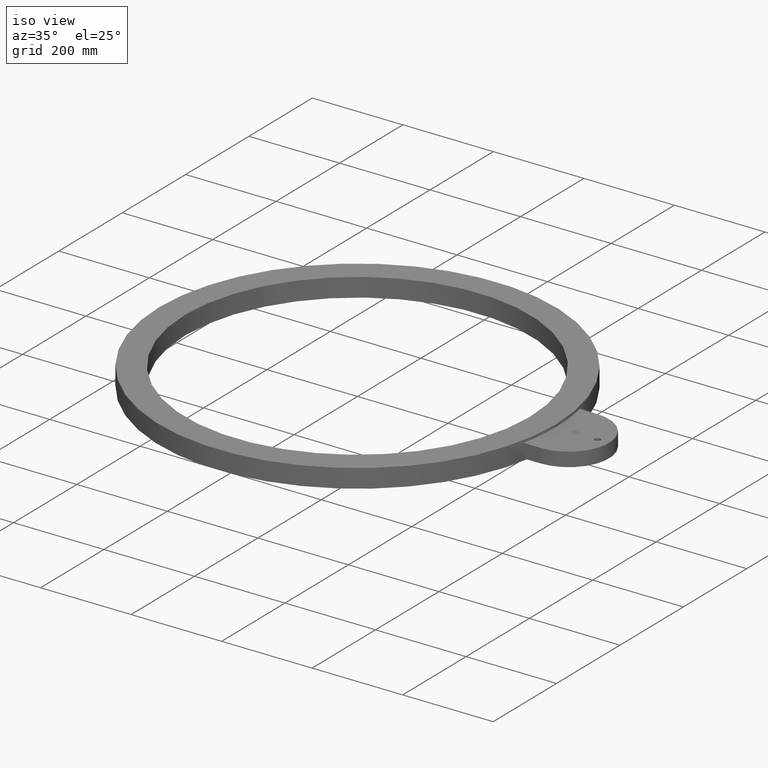
[diagram: clean part render]
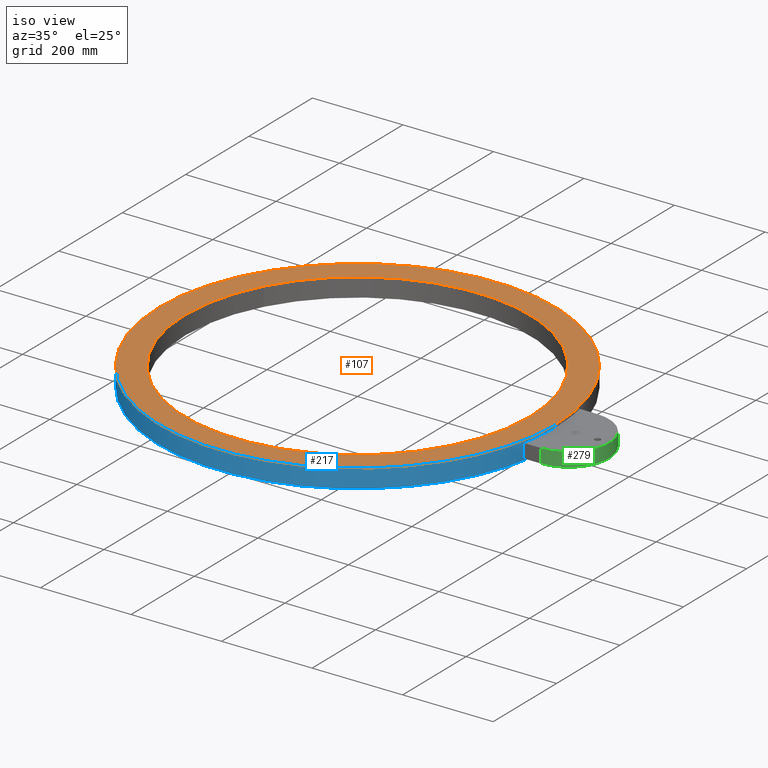
[diagram: same view with three faces highlighted in distinct colors, each labeled with its STEP entity id]
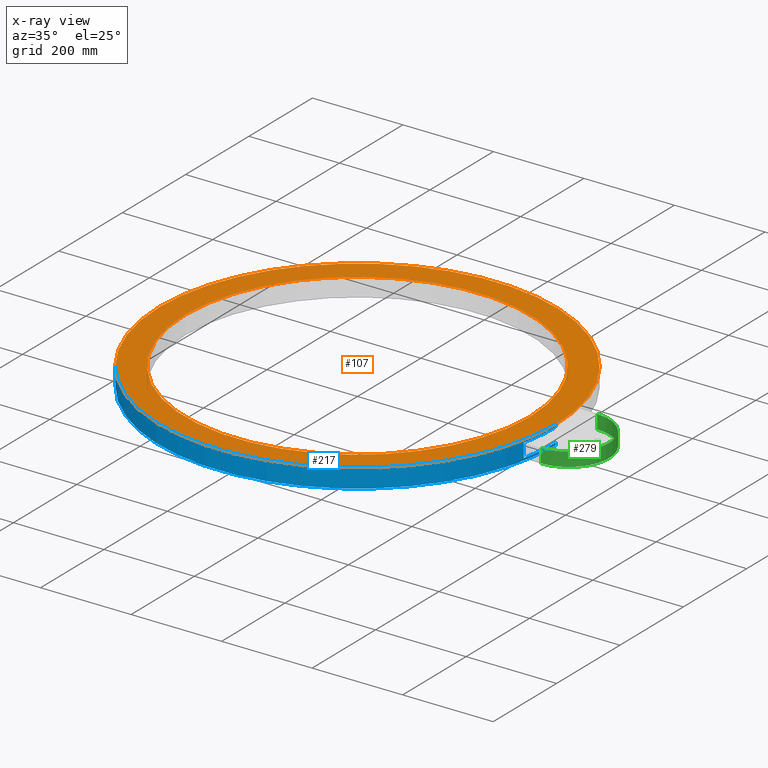
[diagram: x-ray of the same camera — body ghosted, the three highlighted faces saturated]
A machine part, iso view with three faces highlighted in distinct colors.
The next image is the same camera in x-ray (body ghosted, the three faces saturated) — at least one of them is partly hidden behind the body in this view.
Their STEP definitions:

[orange] entity #107 — the highlighted planar face has unit normal (0, 0, 1).
#65=AXIS2_PLACEMENT_3D('Circle Axis2P3D',#63,#64,$) ;
#78=AXIS2_PLACEMENT_3D('Plane Axis2P3D',#75,#76,#77) ;
#82=AXIS2_PLACEMENT_3D('Circle Axis2P3D',#80,#81,$) ;
#91=AXIS2_PLACEMENT_3D('Circle Axis2P3D',#89,#90,$) ;
#100=AXIS2_PLACEMENT_3D('Circle Axis2P3D',#98,#99,$) ;
#46=CARTESIAN_POINT('Vertex',(-13.1637384284,7.19138307909,0.812500000003)) ;
#60=CARTESIAN_POINT('Vertex',(13.1637384284,-7.19138307909,0.812500000003)) ;
#63=CARTESIAN_POINT('Axis2P3D Location',(8.52336574023E-017,-6.99353086378E-017,0.812500000003)) ;
#75=CARTESIAN_POINT('Axis2P3D Location',(0.,0.,0.812500000003)) ;
#80=CARTESIAN_POINT('Axis2P3D Location',(0.,0.,0.812500000003)) ;
#84=CARTESIAN_POINT('Vertex',(17.2500000001,0.,0.812500000003)) ;
#86=CARTESIAN_POINT('Vertex',(-17.2500000001,2.11251572854E-015,0.812500000003)) ;
#89=CARTESIAN_POINT('Axis2P3D Location',(0.,0.,0.812500000003)) ;
#98=CARTESIAN_POINT('Axis2P3D Location',(-5.59482469102E-016,2.23792987641E-015,0.812500000003)) ;
#64=DIRECTION('Axis2P3D Direction',(0.,-0.,-0.0393700787402)) ;
#76=DIRECTION('Axis2P3D Direction',(0.,0.,0.0393700787402)) ;
#77=DIRECTION('Axis2P3D XDirection',(0.0393700787402,0.,0.)) ;
#81=DIRECTION('Axis2P3D Direction',(0.,0.,0.0393700787402)) ;
#90=DIRECTION('Axis2P3D Direction',(0.,0.,0.0393700787402)) ;
#99=DIRECTION('Axis2P3D Direction',(0.,0.,0.0393700787402)) ;
#95=ORIENTED_EDGE('',*,*,#88,.T.) ;
#96=ORIENTED_EDGE('',*,*,#93,.T.) ;
#104=ORIENTED_EDGE('',*,*,#102,.F.) ;
#105=ORIENTED_EDGE('',*,*,#67,.F.) ;
#106=FACE_BOUND('',#103,.T.) ;
#107=ADVANCED_FACE('PartBody',(#97,#106),#79,.T.) ;
#66=CIRCLE('generated circle',#65,15.0000000001) ;
#83=CIRCLE('generated circle',#82,17.2500000001) ;
#92=CIRCLE('generated circle',#91,17.2500000001) ;
#101=CIRCLE('generated circle',#100,15.0000000001) ;
#67=EDGE_CURVE('',#61,#47,#66,.F.) ;
#88=EDGE_CURVE('',#85,#87,#83,.T.) ;
#93=EDGE_CURVE('',#87,#85,#92,.T.) ;
#102=EDGE_CURVE('',#47,#61,#101,.T.) ;
#94=EDGE_LOOP('',(#95,#96)) ;
#103=EDGE_LOOP('',(#104,#105)) ;
#97=FACE_OUTER_BOUND('',#94,.T.) ;
#79=PLANE('',#78) ;
#47=VERTEX_POINT('',#46) ;
#61=VERTEX_POINT('',#60) ;
#85=VERTEX_POINT('',#84) ;
#87=VERTEX_POINT('',#86) ;

[blue] entity #217 — the highlighted cylindrical surface (partial cylindrical patch) has radius 438.15 mm, axis along (0, 0, 1).
#91=AXIS2_PLACEMENT_3D('Circle Axis2P3D',#89,#90,$) ;
#123=AXIS2_PLACEMENT_3D('Cylinder Axis2P3D',#120,#121,#122) ;
#185=AXIS2_PLACEMENT_3D('Circle Axis2P3D',#183,#184,$) ;
#190=AXIS2_PLACEMENT_3D('Circle Axis2P3D',#188,#189,$) ;
#204=AXIS2_PLACEMENT_3D('Circle Axis2P3D',#202,#203,$) ;
#84=CARTESIAN_POINT('Vertex',(17.2500000001,0.,0.812500000003)) ;
#86=CARTESIAN_POINT('Vertex',(-17.2500000001,2.11251572854E-015,0.812500000003)) ;
#89=CARTESIAN_POINT('Axis2P3D Location',(0.,0.,0.812500000003)) ;
#120=CARTESIAN_POINT('Axis2P3D Location',(0.,0.,0.)) ;
#125=CARTESIAN_POINT('Line Origine',(17.2500000001,0.,0.)) ;
#129=CARTESIAN_POINT('Vertex',(17.2500000001,0.,-0.812500000003)) ;
#131=CARTESIAN_POINT('Vertex',(17.2500000001,0.,-0.609375000002)) ;
#138=CARTESIAN_POINT('Vertex',(-17.2500000001,2.11251572854E-015,-0.812500000003)) ;
#141=CARTESIAN_POINT('Line Origine',(-17.2500000001,2.11251572854E-015,0.)) ;
#146=CARTESIAN_POINT('Line Origine',(17.2500000001,0.,0.)) ;
#150=CARTESIAN_POINT('Vertex',(17.2500000001,0.,0.609375000002)) ;
#183=CARTESIAN_POINT('Axis2P3D Location',(0.,0.,-0.812500000003)) ;
#188=CARTESIAN_POINT('Axis2P3D Location',(0.,0.,-0.609375000002)) ;
#192=CARTESIAN_POINT('Vertex',(16.8911959317,-3.50000000001,-0.609375000002)) ;
#195=CARTESIAN_POINT('Line Origine',(16.8911959317,-3.50000000001,0.)) ;
#199=CARTESIAN_POINT('Vertex',(16.8911959317,-3.50000000001,0.609375000002)) ;
#202=CARTESIAN_POINT('Axis2P3D Location',(0.,0.,0.609375000002)) ;
#90=DIRECTION('Axis2P3D Direction',(0.,0.,0.0393700787402)) ;
#121=DIRECTION('Axis2P3D Direction',(0.,0.,0.0393700787402)) ;
#122=DIRECTION('Axis2P3D XDirection',(-0.0393700787402,4.82144409113E-018,0.)) ;
#126=DIRECTION('Vector Direction',(0.,0.,0.0393700787402)) ;
#142=DIRECTION('Vector Direction',(0.,0.,0.0393700787402)) ;
#147=DIRECTION('Vector Direction',(0.,0.,0.0393700787402)) ;
#184=DIRECTION('Axis2P3D Direction',(0.,0.,0.0393700787402)) ;
#189=DIRECTION('Axis2P3D Direction',(0.,0.,0.0393700787402)) ;
#196=DIRECTION('Vector Direction',(0.,0.,0.0393700787402)) ;
#203=DIRECTION('Axis2P3D Direction',(0.,0.,0.0393700787402)) ;
#127=VECTOR('Line Direction',#126,0.0393700787402) ;
#143=VECTOR('Line Direction',#142,0.0393700787402) ;
#148=VECTOR('Line Direction',#147,0.0393700787402) ;
#197=VECTOR('Line Direction',#196,0.0393700787402) ;
#208=ORIENTED_EDGE('',*,*,#152,.T.) ;
#209=ORIENTED_EDGE('',*,*,#93,.F.) ;
#210=ORIENTED_EDGE('',*,*,#145,.F.) ;
#211=ORIENTED_EDGE('',*,*,#187,.T.) ;
#212=ORIENTED_EDGE('',*,*,#133,.T.) ;
#213=ORIENTED_EDGE('',*,*,#194,.F.) ;
#214=ORIENTED_EDGE('',*,*,#201,.T.) ;
#215=ORIENTED_EDGE('',*,*,#206,.T.) ;
#217=ADVANCED_FACE('PartBody',(#216),#124,.T.) ;
#92=CIRCLE('generated circle',#91,17.2500000001) ;
#186=CIRCLE('generated circle',#185,17.2500000001) ;
#191=CIRCLE('generated circle',#190,17.2500000001) ;
#205=CIRCLE('generated circle',#204,17.2500000001) ;
#124=CYLINDRICAL_SURFACE('generated cylinder',#123,17.2500000001) ;
#93=EDGE_CURVE('',#87,#85,#92,.T.) ;
#133=EDGE_CURVE('',#130,#132,#128,.T.) ;
#145=EDGE_CURVE('',#139,#87,#144,.T.) ;
#152=EDGE_CURVE('',#151,#85,#149,.T.) ;
#187=EDGE_CURVE('',#139,#130,#186,.T.) ;
#194=EDGE_CURVE('',#193,#132,#191,.T.) ;
#201=EDGE_CURVE('',#193,#200,#198,.T.) ;
#206=EDGE_CURVE('',#200,#151,#205,.T.) ;
#207=EDGE_LOOP('',(#208,#209,#210,#211,#212,#213,#214,#215)) ;
#216=FACE_OUTER_BOUND('',#207,.T.) ;
#128=LINE('Line',#125,#127) ;
#144=LINE('Line',#141,#143) ;
#149=LINE('Line',#146,#148) ;
#198=LINE('Line',#195,#197) ;
#85=VERTEX_POINT('',#84) ;
#87=VERTEX_POINT('',#86) ;
#130=VERTEX_POINT('',#129) ;
#132=VERTEX_POINT('',#131) ;
#139=VERTEX_POINT('',#138) ;
#151=VERTEX_POINT('',#150) ;
#193=VERTEX_POINT('',#192) ;
#200=VERTEX_POINT('',#199) ;

[green] entity #279 — the highlighted cylindrical surface (partial cylindrical patch) has radius 88.9 mm, axis along (0, 0, 1).
#252=AXIS2_PLACEMENT_3D('Cylinder Axis2P3D',#249,#250,#251) ;
#256=AXIS2_PLACEMENT_3D('Circle Axis2P3D',#254,#255,$) ;
#270=AXIS2_PLACEMENT_3D('Circle Axis2P3D',#268,#269,$) ;
#227=CARTESIAN_POINT('Vertex',(18.3911959317,-3.50000000001,-0.609375000002)) ;
#230=CARTESIAN_POINT('Line Origine',(18.3911959317,-3.50000000001,-6.99353086378E-017)) ;
#234=CARTESIAN_POINT('Vertex',(18.3911959317,-3.50000000001,0.609375000002)) ;
#249=CARTESIAN_POINT('Axis2P3D Location',(18.3911959317,0.,0.)) ;
#254=CARTESIAN_POINT('Axis2P3D Location',(18.3911959317,0.,-0.609375000002)) ;
#258=CARTESIAN_POINT('Vertex',(18.3911959317,3.50000000001,-0.609375000002)) ;
#261=CARTESIAN_POINT('Line Origine',(18.3911959317,3.50000000001,-6.99353086378E-017)) ;
#265=CARTESIAN_POINT('Vertex',(18.3911959317,3.50000000001,0.609375000002)) ;
#268=CARTESIAN_POINT('Axis2P3D Location',(18.3911959317,0.,0.609375000002)) ;
#231=DIRECTION('Vector Direction',(0.,0.,0.0393700787402)) ;
#250=DIRECTION('Axis2P3D Direction',(0.,0.,0.0393700787402)) ;
#251=DIRECTION('Axis2P3D XDirection',(-7.2321661367E-018,-0.0393700787402,-0.)) ;
#255=DIRECTION('Axis2P3D Direction',(0.,0.,0.0393700787402)) ;
#262=DIRECTION('Vector Direction',(0.,0.,0.0393700787402)) ;
#269=DIRECTION('Axis2P3D Direction',(0.,0.,0.0393700787402)) ;
#232=VECTOR('Line Direction',#231,0.0393700787402) ;
#263=VECTOR('Line Direction',#262,0.0393700787402) ;
#274=ORIENTED_EDGE('',*,*,#236,.F.) ;
#275=ORIENTED_EDGE('',*,*,#260,.T.) ;
#276=ORIENTED_EDGE('',*,*,#267,.T.) ;
#277=ORIENTED_EDGE('',*,*,#272,.F.) ;
#279=ADVANCED_FACE('PartBody',(#278),#253,.T.) ;
#257=CIRCLE('generated circle',#256,3.50000000001) ;
#271=CIRCLE('generated circle',#270,3.50000000001) ;
#253=CYLINDRICAL_SURFACE('generated cylinder',#252,3.50000000001) ;
#236=EDGE_CURVE('',#228,#235,#233,.T.) ;
#260=EDGE_CURVE('',#228,#259,#257,.T.) ;
#267=EDGE_CURVE('',#259,#266,#264,.T.) ;
#272=EDGE_CURVE('',#235,#266,#271,.T.) ;
#273=EDGE_LOOP('',(#274,#275,#276,#277)) ;
#278=FACE_OUTER_BOUND('',#273,.T.) ;
#233=LINE('Line',#230,#232) ;
#264=LINE('Line',#261,#263) ;
#228=VERTEX_POINT('',#227) ;
#235=VERTEX_POINT('',#234) ;
#259=VERTEX_POINT('',#258) ;
#266=VERTEX_POINT('',#265) ;